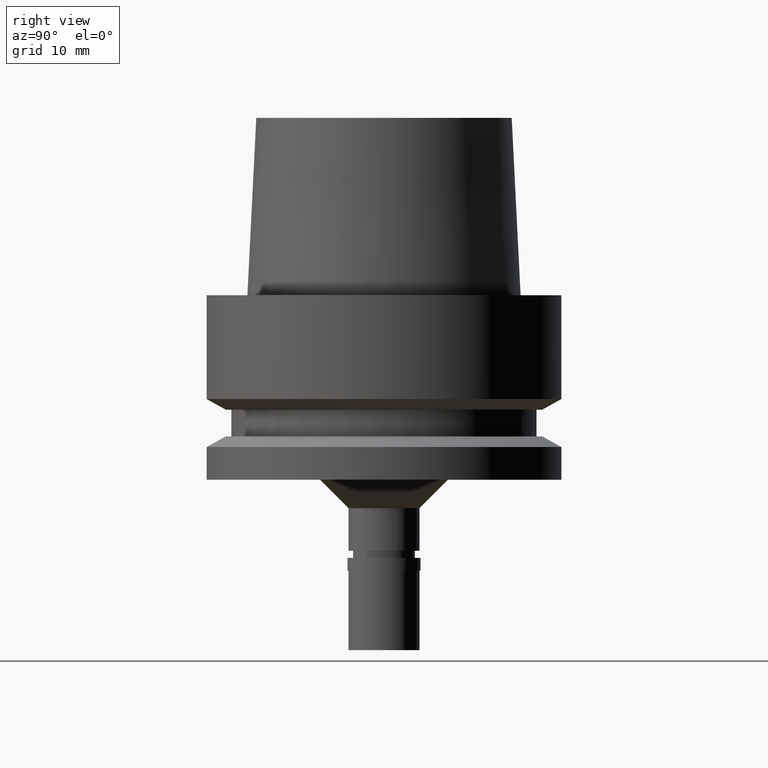
[diagram: clean part render]
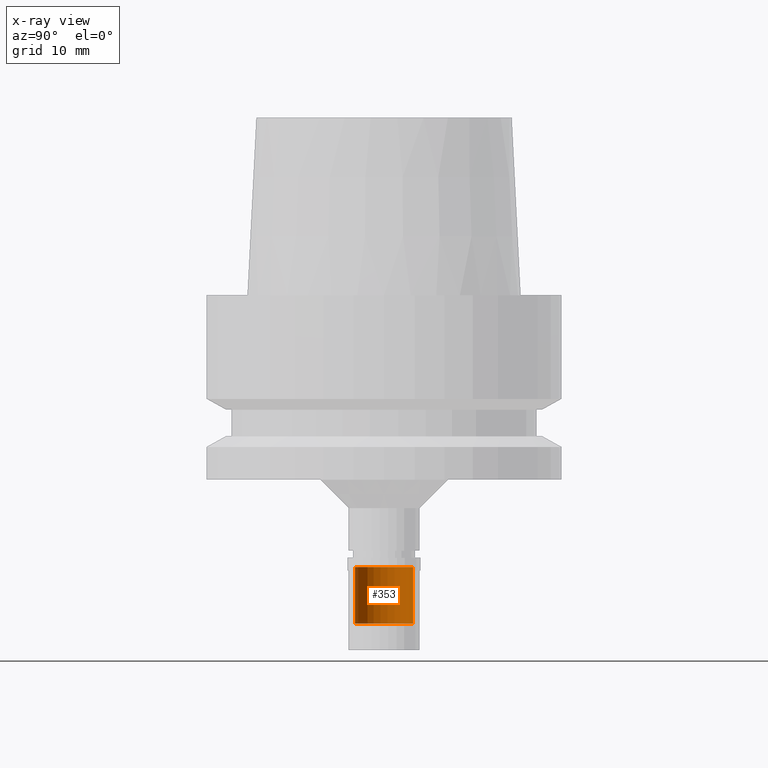
[diagram: x-ray — body ghosted, one internal face saturated and labeled with its STEP entity id]
A machine part, right view, then the same camera in x-ray: the body is ghosted and one INTERNAL B-rep face — a face not visible from any outside direction — is saturated and labeled: STEP entity #353.
In plain terms, the highlighted cylindrical surface (edge-blend (fillet) strip) has radius 4.1 mm, axis along (0, 0, 1).
Its self-contained STEP definition (entity closure, byte-faithful):
#68 = DIRECTION ( 'NONE',  ( 0.0000000000000000000, 0.0000000000000000000, -1.000000000000000000 ) ) ;
#139 = AXIS2_PLACEMENT_3D ( 'NONE', #2638, #1980, #2195 ) ;
#184 = AXIS2_PLACEMENT_3D ( 'NONE', #1656, #2478, #2279 ) ;
#255 = CARTESIAN_POINT ( 'NONE',  ( 0.0000000000000000000, 0.0000000000000000000, -38.29999999999999716 ) ) ;
#353 = ADVANCED_FACE ( 'NONE', ( #1518 ), #815, .T. ) ;
#427 = VERTEX_POINT ( 'NONE', #762 ) ;
#497 = ORIENTED_EDGE ( 'NONE', *, *, #1680, .F. ) ;
#563 = EDGE_CURVE ( 'NONE', #427, #1651, #688, .T. ) ;
#688 = CIRCLE ( 'NONE', #139, 4.100000000000000533 ) ;
#723 = EDGE_LOOP ( 'NONE', ( #1317, #497, #2160, #2298 ) ) ;
#762 = CARTESIAN_POINT ( 'NONE',  ( 0.0000000000000000000, 4.100000000000000533, -46.30000000000000426 ) ) ;
#815 = CYLINDRICAL_SURFACE ( 'NONE', #184, 4.100000000000000533 ) ;
#836 = VERTEX_POINT ( 'NONE', #1876 ) ;
#959 = CARTESIAN_POINT ( 'NONE',  ( 0.0000000000000000000, -4.100000000000000533, -46.30000000000000426 ) ) ;
#1142 = DIRECTION ( 'NONE',  ( 0.0000000000000000000, 0.0000000000000000000, -1.000000000000000000 ) ) ;
#1261 = VERTEX_POINT ( 'NONE', #1998 ) ;
#1290 = DIRECTION ( 'NONE',  ( 0.0000000000000000000, -1.000000000000000000, 0.0000000000000000000 ) ) ;
#1303 = DIRECTION ( 'NONE',  ( 0.0000000000000000000, 0.0000000000000000000, -1.000000000000000000 ) ) ;
#1317 = ORIENTED_EDGE ( 'NONE', *, *, #563, .T. ) ;
#1353 = LINE ( 'NONE', #1814, #2535 ) ;
#1518 = FACE_OUTER_BOUND ( 'NONE', #723, .T. ) ;
#1651 = VERTEX_POINT ( 'NONE', #959 ) ;
#1656 = CARTESIAN_POINT ( 'NONE',  ( 0.0000000000000000000, 0.0000000000000000000, -49.86500000000000199 ) ) ;
#1680 = EDGE_CURVE ( 'NONE', #836, #1651, #1353, .T. ) ;
#1702 = LINE ( 'NONE', #2528, #1932 ) ;
#1814 = CARTESIAN_POINT ( 'NONE',  ( 0.0000000000000000000, -4.100000000000000533, -38.29999999999999716 ) ) ;
#1876 = CARTESIAN_POINT ( 'NONE',  ( 0.0000000000000000000, -4.100000000000000533, -38.29999999999999716 ) ) ;
#1932 = VECTOR ( 'NONE', #1303, 1000.000000000000000 ) ;
#1980 = DIRECTION ( 'NONE',  ( 0.0000000000000000000, 0.0000000000000000000, 1.000000000000000000 ) ) ;
#1998 = CARTESIAN_POINT ( 'NONE',  ( 0.0000000000000000000, 4.100000000000000533, -38.29999999999999716 ) ) ;
#2008 = EDGE_CURVE ( 'NONE', #836, #1261, #2625, .T. ) ;
#2160 = ORIENTED_EDGE ( 'NONE', *, *, #2008, .T. ) ;
#2192 = EDGE_CURVE ( 'NONE', #1261, #427, #1702, .T. ) ;
#2195 = DIRECTION ( 'NONE',  ( 0.0000000000000000000, 1.000000000000000000, 0.0000000000000000000 ) ) ;
#2279 = DIRECTION ( 'NONE',  ( 0.0000000000000000000, 1.000000000000000000, 0.0000000000000000000 ) ) ;
#2298 = ORIENTED_EDGE ( 'NONE', *, *, #2192, .T. ) ;
#2450 = AXIS2_PLACEMENT_3D ( 'NONE', #255, #68, #1290 ) ;
#2478 = DIRECTION ( 'NONE',  ( 0.0000000000000000000, 0.0000000000000000000, 1.000000000000000000 ) ) ;
#2528 = CARTESIAN_POINT ( 'NONE',  ( 0.0000000000000000000, 4.100000000000000533, -38.29999999999999716 ) ) ;
#2535 = VECTOR ( 'NONE', #1142, 1000.000000000000000 ) ;
#2625 = CIRCLE ( 'NONE', #2450, 4.100000000000000533 ) ;
#2638 = CARTESIAN_POINT ( 'NONE',  ( 0.0000000000000000000, 0.0000000000000000000, -46.30000000000000426 ) ) ;